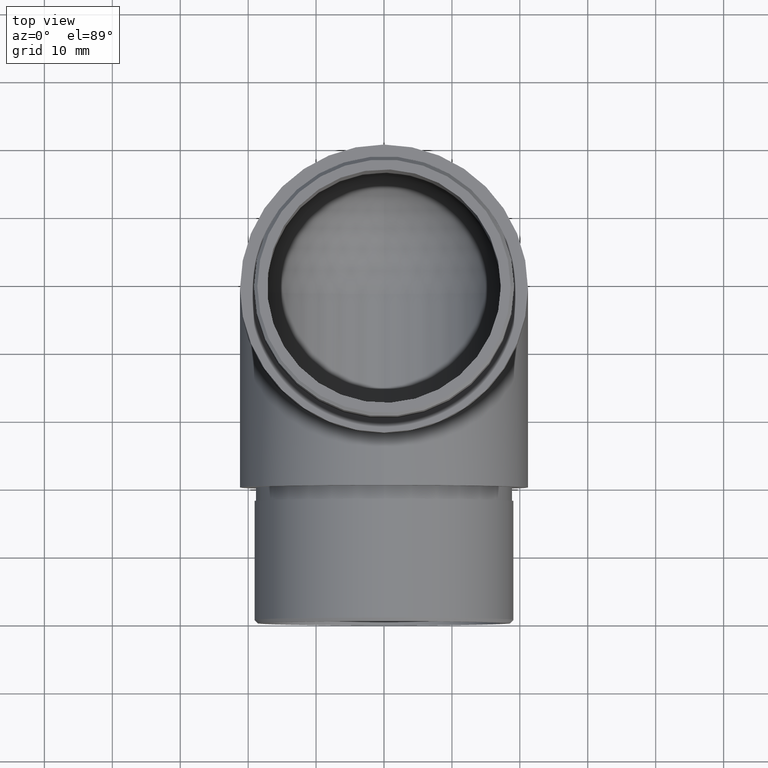
[diagram: clean part render]
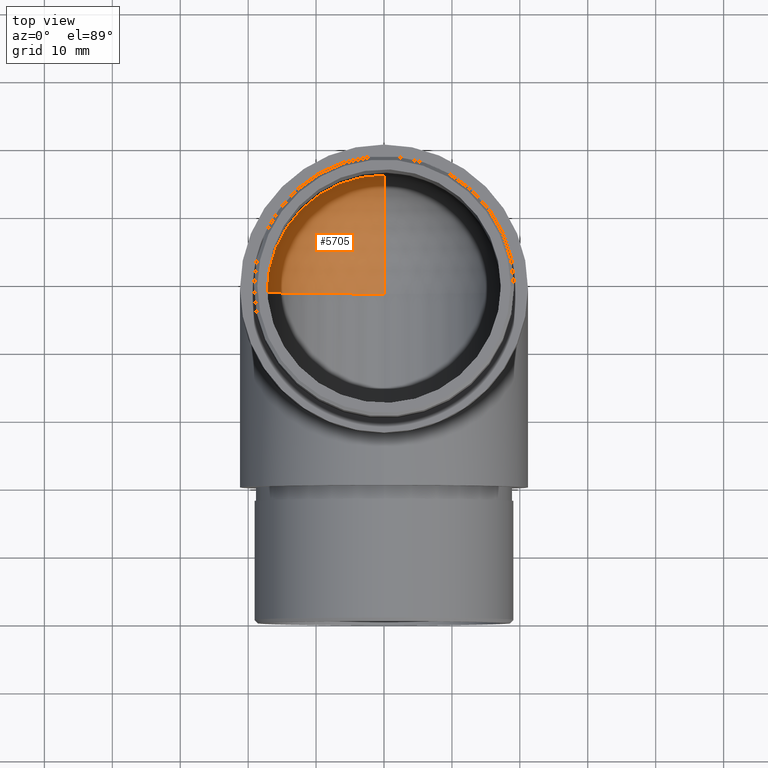
[diagram: same view with one face highlighted and labeled with its STEP entity id]
A machine part, top view. The second image highlights one B-rep face of the part: STEP entity #5705.
In plain terms, the highlighted spherical surface has radius 17.2 mm.
Its self-contained STEP definition (entity closure, byte-faithful):
#716 = VERTEX_POINT ( 'NONE', #3764 ) ;
#1326 = CARTESIAN_POINT ( 'NONE',  ( -17.19999999999999600, 28.80000000000001100, 21.19999999999999200 ) ) ;
#1551 = AXIS2_PLACEMENT_3D ( 'NONE', #1812, #1777, #10219 ) ;
#1679 = CARTESIAN_POINT ( 'NONE',  ( 0.0000000000000000000, 28.80000000000000800, 21.19999999999999600 ) ) ;
#1777 = DIRECTION ( 'NONE',  ( 1.000000000000000000, -0.0000000000000000000, -0.0000000000000000000 ) ) ;
#1793 = DIRECTION ( 'NONE',  ( 0.0000000000000000000, 1.000000000000000000, 0.0000000000000000000 ) ) ;
#1812 = CARTESIAN_POINT ( 'NONE',  ( 2.814834319509536000E-015, 28.80000000000000800, 21.19999999999999600 ) ) ;
#3764 = CARTESIAN_POINT ( 'NONE',  ( -5.629668639019072100E-015, 46.00000000000000000, 21.19999999999999600 ) ) ;
#3823 = EDGE_CURVE ( 'NONE', #11739, #716, #3929, .T. ) ;
#3929 = CIRCLE ( 'NONE', #6537, 17.19999999999999900 ) ;
#4376 = EDGE_CURVE ( 'NONE', #11739, #10728, #6888, .T. ) ;
#5705 = ADVANCED_FACE ( 'NONE', ( #7025 ), #10166, .F. ) ;
#5721 = DIRECTION ( 'NONE',  ( 0.0000000000000000000, 1.000000000000000000, 2.017120320903264200E-016 ) ) ;
#5869 = AXIS2_PLACEMENT_3D ( 'NONE', #12273, #11315, #12229 ) ;
#6440 = CIRCLE ( 'NONE', #1551, 17.19999999999999900 ) ;
#6537 = AXIS2_PLACEMENT_3D ( 'NONE', #1679, #7623, #5721 ) ;
#6679 = CARTESIAN_POINT ( 'NONE',  ( 0.0000000000000000000, 28.80000000000000800, 21.19999999999999600 ) ) ;
#6888 = CIRCLE ( 'NONE', #5869, 17.19999999999999900 ) ;
#7025 = FACE_OUTER_BOUND ( 'NONE', #9909, .T. ) ;
#7623 = DIRECTION ( 'NONE',  ( 0.0000000000000000000, 1.608122649676636600E-016, -1.000000000000000000 ) ) ;
#7650 = DIRECTION ( 'NONE',  ( 0.0000000000000000000, 0.0000000000000000000, -1.000000000000000000 ) ) ;
#8505 = ORIENTED_EDGE ( 'NONE', *, *, #4376, .T. ) ;
#9176 = ORIENTED_EDGE ( 'NONE', *, *, #3823, .F. ) ;
#9655 = AXIS2_PLACEMENT_3D ( 'NONE', #6679, #1793, #7650 ) ;
#9909 = EDGE_LOOP ( 'NONE', ( #8505, #10189, #9176 ) ) ;
#10166 = SPHERICAL_SURFACE ( 'NONE', #9655, 17.19999999999999900 ) ;
#10189 = ORIENTED_EDGE ( 'NONE', *, *, #12276, .T. ) ;
#10219 = DIRECTION ( 'NONE',  ( 0.0000000000000000000, 0.0000000000000000000, 1.000000000000000000 ) ) ;
#10728 = VERTEX_POINT ( 'NONE', #11926 ) ;
#11315 = DIRECTION ( 'NONE',  ( 0.0000000000000000000, -1.000000000000000000, 0.0000000000000000000 ) ) ;
#11739 = VERTEX_POINT ( 'NONE', #1326 ) ;
#11926 = CARTESIAN_POINT ( 'NONE',  ( 2.814834319509536000E-015, 28.80000000000000800, 3.999999999999996400 ) ) ;
#12229 = DIRECTION ( 'NONE',  ( 0.0000000000000000000, 0.0000000000000000000, -1.000000000000000000 ) ) ;
#12273 = CARTESIAN_POINT ( 'NONE',  ( 0.0000000000000000000, 28.80000000000000800, 21.20000000000000300 ) ) ;
#12276 = EDGE_CURVE ( 'NONE', #10728, #716, #6440, .T. ) ;